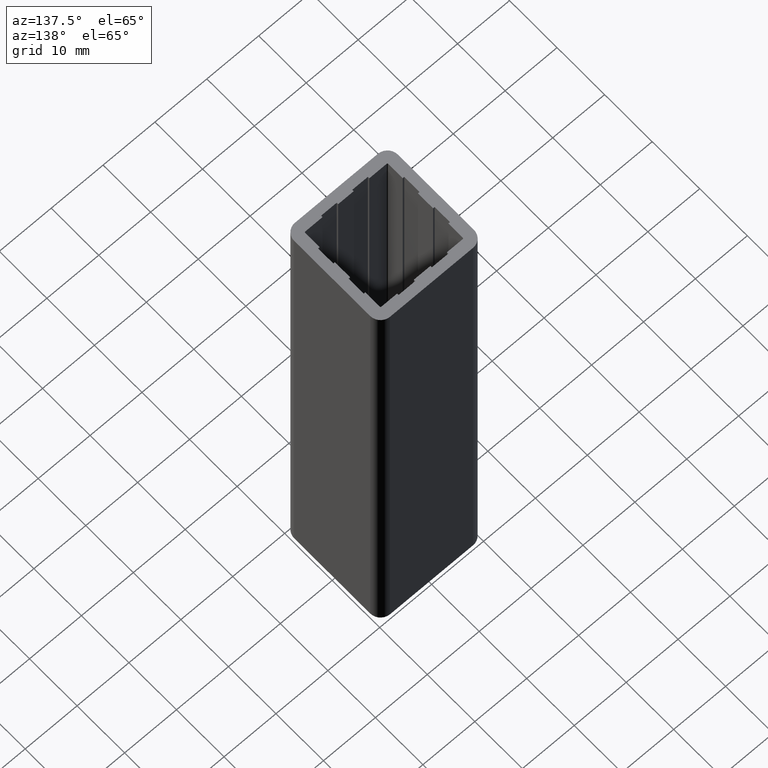
[diagram: clean part render]
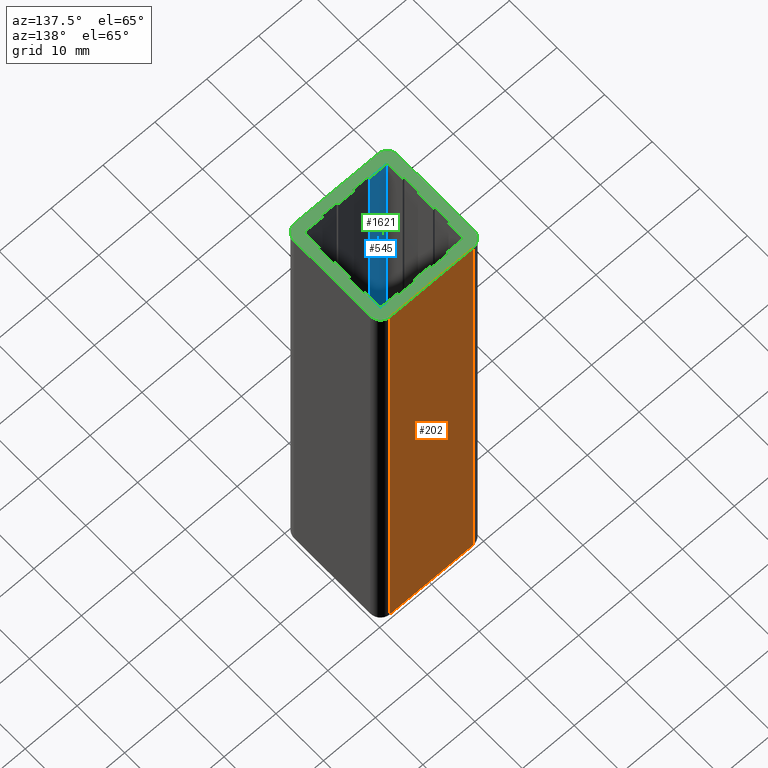
[diagram: same view with three faces highlighted in distinct colors, each labeled with its STEP entity id]
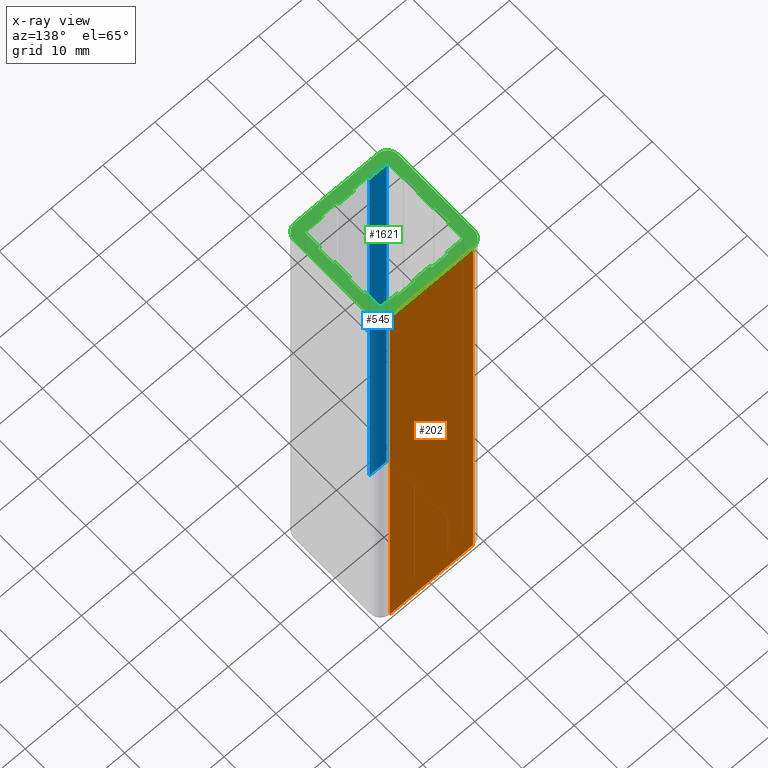
[diagram: x-ray of the same camera — body ghosted, the three highlighted faces saturated]
A machine part, auxiliary view with three faces highlighted in distinct colors.
The next image is the same camera in x-ray (body ghosted, the three faces saturated) — at least one of them is partly hidden behind the body in this view.
Their STEP definitions:

[orange] entity #202 — the highlighted planar face has unit normal (0, 1, 0).
#144=CARTESIAN_POINT('',(-2.0,10.0,0.0));
#145=VERTEX_POINT('',#144);
#153=CARTESIAN_POINT('',(-2.0,10.0,100.0));
#154=VERTEX_POINT('',#153);
#155=CARTESIAN_POINT('',(-2.0,10.0,0.0));
#156=DIRECTION('',(0.0,0.0,1.0));
#157=VECTOR('',#156,100.0);
#158=LINE('',#155,#157);
#159=EDGE_CURVE('',#145,#154,#158,.T.);
#172=CARTESIAN_POINT('',(-2.0,10.0,0.0));
#173=DIRECTION('',(0.0,1.0,0.0));
#174=DIRECTION('',(-1.0,0.0,0.0));
#175=AXIS2_PLACEMENT_3D('',#172,#173,#174);
#176=PLANE('',#175);
#177=CARTESIAN_POINT('',(-18.0,10.0,0.0));
#178=VERTEX_POINT('',#177);
#179=CARTESIAN_POINT('',(-1.999999999999989,10.0,0.0));
#180=DIRECTION('',(-1.0,0.0,0.0));
#181=VECTOR('',#180,16.000000000000011);
#182=LINE('',#179,#181);
#183=EDGE_CURVE('',#145,#178,#182,.T.);
#184=ORIENTED_EDGE('',*,*,#183,.T.);
#185=CARTESIAN_POINT('',(-18.0,10.0,100.0));
#186=VERTEX_POINT('',#185);
#187=CARTESIAN_POINT('',(-18.0,10.0,0.0));
#188=DIRECTION('',(0.0,0.0,1.0));
#189=VECTOR('',#188,100.0);
#190=LINE('',#187,#189);
#191=EDGE_CURVE('',#178,#186,#190,.T.);
#192=ORIENTED_EDGE('',*,*,#191,.T.);
#193=CARTESIAN_POINT('',(-1.999999999999989,10.0,100.0));
#194=DIRECTION('',(-1.0,0.0,0.0));
#195=VECTOR('',#194,16.000000000000011);
#196=LINE('',#193,#195);
#197=EDGE_CURVE('',#154,#186,#196,.T.);
#198=ORIENTED_EDGE('',*,*,#197,.F.);
#199=ORIENTED_EDGE('',*,*,#159,.F.);
#200=EDGE_LOOP('',(#184,#192,#198,#199));
#201=FACE_OUTER_BOUND('',#200,.T.);
#202=ADVANCED_FACE('',(#201),#176,.T.);

[blue] entity #545 — the highlighted planar face has unit normal (0, 1, 0).
#489=CARTESIAN_POINT('',(-14.500000000000000,-8.0,0.0));
#490=VERTEX_POINT('',#489);
#497=CARTESIAN_POINT('',(-14.500000000000000,-8.0,100.0));
#498=VERTEX_POINT('',#497);
#499=CARTESIAN_POINT('',(-14.500000000000000,-8.0,0.0));
#500=DIRECTION('',(0.0,0.0,1.0));
#501=VECTOR('',#500,100.0);
#502=LINE('',#499,#501);
#503=EDGE_CURVE('',#490,#498,#502,.T.);
#515=CARTESIAN_POINT('',(-14.500000000000000,-8.0,0.0));
#516=DIRECTION('',(0.0,1.0,0.0));
#517=DIRECTION('',(-1.0,0.0,0.0));
#518=AXIS2_PLACEMENT_3D('',#515,#516,#517);
#519=PLANE('',#518);
#520=CARTESIAN_POINT('',(-17.840000000000146,-8.000000000000227,0.0));
#521=VERTEX_POINT('',#520);
#522=CARTESIAN_POINT('',(-14.500000000000000,-8.0,0.0));
#523=DIRECTION('',(-1.0,0.0,0.0));
#524=VECTOR('',#523,3.340000000000146);
#525=LINE('',#522,#524);
#526=EDGE_CURVE('',#490,#521,#525,.T.);
#527=ORIENTED_EDGE('',*,*,#526,.T.);
#528=CARTESIAN_POINT('',(-17.840000000000146,-8.000000000000227,100.0));
#529=VERTEX_POINT('',#528);
#530=CARTESIAN_POINT('',(-17.840000000000146,-8.000000000000227,0.0));
#531=DIRECTION('',(0.0,0.0,1.0));
#532=VECTOR('',#531,100.0);
#533=LINE('',#530,#532);
#534=EDGE_CURVE('',#521,#529,#533,.T.);
#535=ORIENTED_EDGE('',*,*,#534,.T.);
#536=CARTESIAN_POINT('',(-14.500000000000000,-8.0,100.0));
#537=DIRECTION('',(-1.0,0.0,0.0));
#538=VECTOR('',#537,3.340000000000146);
#539=LINE('',#536,#538);
#540=EDGE_CURVE('',#498,#529,#539,.T.);
#541=ORIENTED_EDGE('',*,*,#540,.F.);
#542=ORIENTED_EDGE('',*,*,#503,.F.);
#543=EDGE_LOOP('',(#527,#535,#541,#542));
#544=FACE_OUTER_BOUND('',#543,.T.);
#545=ADVANCED_FACE('',(#544),#519,.T.);

[green] entity #1621 — the highlighted planar face has unit normal (0, 0, 1).
#18=CARTESIAN_POINT('',(-18.0,-10.0,100.0));
#19=VERTEX_POINT('',#18);
#26=CARTESIAN_POINT('',(-20.0,-8.0,100.0));
#27=VERTEX_POINT('',#26);
#28=CARTESIAN_POINT('',(-18.0,-8.0,100.0));
#29=DIRECTION('',(0.0,0.0,1.0));
#30=DIRECTION('',(1.0,0.0,0.0));
#31=AXIS2_PLACEMENT_3D('',#28,#29,#30);
#32=CIRCLE('',#31,2.0);
#33=EDGE_CURVE('',#27,#19,#32,.T.);
#57=CARTESIAN_POINT('',(-2.0,-10.0,100.0));
#58=VERTEX_POINT('',#57);
#65=CARTESIAN_POINT('',(-18.0,-10.0,100.0));
#66=DIRECTION('',(1.0,0.0,0.0));
#67=VECTOR('',#66,16.000000000000011);
#68=LINE('',#65,#67);
#69=EDGE_CURVE('',#19,#58,#68,.T.);
#89=CARTESIAN_POINT('',(0.0,-8.0,100.0));
#90=VERTEX_POINT('',#89);
#97=CARTESIAN_POINT('',(-2.0,-8.0,100.0));
#98=DIRECTION('',(0.0,0.0,1.0));
#99=DIRECTION('',(1.0,0.0,0.0));
#100=AXIS2_PLACEMENT_3D('',#97,#98,#99);
#101=CIRCLE('',#100,2.0);
#102=EDGE_CURVE('',#58,#90,#101,.T.);
#121=CARTESIAN_POINT('',(0.0,8.0,100.0));
#122=VERTEX_POINT('',#121);
#129=CARTESIAN_POINT('',(0.0,-8.0,100.0));
#130=DIRECTION('',(0.0,1.0,0.0));
#131=VECTOR('',#130,16.0);
#132=LINE('',#129,#131);
#133=EDGE_CURVE('',#90,#122,#132,.T.);
#153=CARTESIAN_POINT('',(-2.0,10.0,100.0));
#154=VERTEX_POINT('',#153);
#161=CARTESIAN_POINT('',(-2.0,8.0,100.0));
#162=DIRECTION('',(0.0,0.0,1.0));
#163=DIRECTION('',(1.0,0.0,0.0));
#164=AXIS2_PLACEMENT_3D('',#161,#162,#163);
#165=CIRCLE('',#164,2.0);
#166=EDGE_CURVE('',#122,#154,#165,.T.);
#185=CARTESIAN_POINT('',(-18.0,10.0,100.0));
#186=VERTEX_POINT('',#185);
#193=CARTESIAN_POINT('',(-1.999999999999989,10.0,100.0));
#194=DIRECTION('',(-1.0,0.0,0.0));
#195=VECTOR('',#194,16.000000000000011);
#196=LINE('',#193,#195);
#197=EDGE_CURVE('',#154,#186,#196,.T.);
#217=CARTESIAN_POINT('',(-20.0,8.0,100.0));
#218=VERTEX_POINT('',#217);
#225=CARTESIAN_POINT('',(-18.0,8.0,100.0));
#226=DIRECTION('',(0.0,0.0,1.0));
#227=DIRECTION('',(1.0,0.0,0.0));
#228=AXIS2_PLACEMENT_3D('',#225,#226,#227);
#229=CIRCLE('',#228,2.0);
#230=EDGE_CURVE('',#186,#218,#229,.T.);
#248=CARTESIAN_POINT('',(-20.0,8.0,100.0));
#249=DIRECTION('',(0.0,-1.0,0.0));
#250=VECTOR('',#249,16.0);
#251=LINE('',#248,#250);
#252=EDGE_CURVE('',#218,#27,#251,.T.);
#273=CARTESIAN_POINT('',(-5.500000000000000,-8.0,100.0));
#274=VERTEX_POINT('',#273);
#281=CARTESIAN_POINT('',(-2.160000000000196,-8.0,100.0));
#282=VERTEX_POINT('',#281);
#283=CARTESIAN_POINT('',(-2.160000000000218,-8.0,100.0));
#284=DIRECTION('',(-1.0,0.0,0.0));
#285=VECTOR('',#284,3.339999999999782);
#286=LINE('',#283,#285);
#287=EDGE_CURVE('',#282,#274,#286,.T.);
#311=CARTESIAN_POINT('',(-5.500000000000000,-8.299999999999955,100.0));
#312=VERTEX_POINT('',#311);
#319=CARTESIAN_POINT('',(-5.500000000000000,-7.999999999999955,100.0));
#320=DIRECTION('',(0.0,-1.0,0.0));
#321=VECTOR('',#320,0.300000000000000);
#322=LINE('',#319,#321);
#323=EDGE_CURVE('',#274,#312,#322,.T.);
#342=CARTESIAN_POINT('',(-8.500000000000000,-8.299999999999955,100.0));
#343=VERTEX_POINT('',#342);
#350=CARTESIAN_POINT('',(-5.500000000000000,-8.299999999999955,100.0));
#351=DIRECTION('',(-1.0,0.0,0.0));
#352=VECTOR('',#351,3.0);
#353=LINE('',#350,#352);
#354=EDGE_CURVE('',#312,#343,#353,.T.);
#373=CARTESIAN_POINT('',(-8.500000000000000,-8.0,100.0));
#374=VERTEX_POINT('',#373);
#381=CARTESIAN_POINT('',(-8.500000000000000,-8.300000000000001,100.0));
#382=DIRECTION('',(0.0,1.0,0.0));
#383=VECTOR('',#382,0.300000000000001);
#384=LINE('',#381,#383);
#385=EDGE_CURVE('',#343,#374,#384,.T.);
#404=CARTESIAN_POINT('',(-11.500000000000000,-8.0,100.0));
#405=VERTEX_POINT('',#404);
#412=CARTESIAN_POINT('',(-8.500000000000011,-8.0,100.0));
#413=DIRECTION('',(-1.0,0.0,0.0));
#414=VECTOR('',#413,2.999999999999989);
#415=LINE('',#412,#414);
#416=EDGE_CURVE('',#374,#405,#415,.T.);
#435=CARTESIAN_POINT('',(-11.500000000000000,-8.299999999999955,100.0));
#436=VERTEX_POINT('',#435);
#443=CARTESIAN_POINT('',(-11.500000000000000,-7.999999999999955,100.0));
#444=DIRECTION('',(0.0,-1.0,0.0));
#445=VECTOR('',#444,0.300000000000000);
#446=LINE('',#443,#445);
#447=EDGE_CURVE('',#405,#436,#446,.T.);
#466=CARTESIAN_POINT('',(-14.500000000000000,-8.299999999999955,100.0));
#467=VERTEX_POINT('',#466);
#474=CARTESIAN_POINT('',(-11.500000000000000,-8.299999999999955,100.0));
#475=DIRECTION('',(-1.0,0.0,0.0));
#476=VECTOR('',#475,3.0);
#477=LINE('',#474,#476);
#478=EDGE_CURVE('',#436,#467,#477,.T.);
#497=CARTESIAN_POINT('',(-14.500000000000000,-8.0,100.0));
#498=VERTEX_POINT('',#497);
#505=CARTESIAN_POINT('',(-14.500000000000000,-8.300000000000001,100.0));
#506=DIRECTION('',(0.0,1.0,0.0));
#507=VECTOR('',#506,0.300000000000001);
#508=LINE('',#505,#507);
#509=EDGE_CURVE('',#467,#498,#508,.T.);
#528=CARTESIAN_POINT('',(-17.840000000000146,-8.000000000000227,100.0));
#529=VERTEX_POINT('',#528);
#536=CARTESIAN_POINT('',(-14.500000000000000,-8.0,100.0));
#537=DIRECTION('',(-1.0,0.0,0.0));
#538=VECTOR('',#537,3.340000000000146);
#539=LINE('',#536,#538);
#540=EDGE_CURVE('',#498,#529,#539,.T.);
#560=CARTESIAN_POINT('',(-18.000000000000341,-7.840000000000146,100.0));
#561=VERTEX_POINT('',#560);
#568=CARTESIAN_POINT('',(-17.840000000000146,-7.840000000000146,100.0));
#569=DIRECTION('',(0.0,0.0,-1.0));
#570=DIRECTION('',(1.0,0.0,0.0));
#571=AXIS2_PLACEMENT_3D('',#568,#569,#570);
#572=CIRCLE('',#571,0.160000000000000);
#573=EDGE_CURVE('',#529,#561,#572,.T.);
#592=CARTESIAN_POINT('',(-18.000000000000341,-4.799999999999955,100.0));
#593=VERTEX_POINT('',#592);
#600=CARTESIAN_POINT('',(-18.000000000000341,-7.840000000000055,100.0));
#601=DIRECTION('',(0.0,1.0,0.0));
#602=VECTOR('',#601,3.040000000000100);
#603=LINE('',#600,#602);
#604=EDGE_CURVE('',#561,#593,#603,.T.);
#623=CARTESIAN_POINT('',(-18.300000000000409,-4.799999999999955,100.0));
#624=VERTEX_POINT('',#623);
#631=CARTESIAN_POINT('',(-18.000000000000398,-4.799999999999955,100.0));
#632=DIRECTION('',(-1.0,0.0,0.0));
#633=VECTOR('',#632,0.300000000000011);
#634=LINE('',#631,#633);
#635=EDGE_CURVE('',#593,#624,#634,.T.);
#654=CARTESIAN_POINT('',(-18.300000000000296,-1.599999999999909,100.0));
#655=VERTEX_POINT('',#654);
#662=CARTESIAN_POINT('',(-18.300000000000409,-4.799999999999909,100.0));
#663=DIRECTION('',(0.0,1.0,0.0));
#664=VECTOR('',#663,3.200000000000000);
#665=LINE('',#662,#664);
#666=EDGE_CURVE('',#624,#655,#665,.T.);
#685=CARTESIAN_POINT('',(-18.000000000000341,-1.599999999999909,100.0));
#686=VERTEX_POINT('',#685);
#693=CARTESIAN_POINT('',(-18.300000000000352,-1.599999999999909,100.0));
#694=DIRECTION('',(1.0,0.0,0.0));
#695=VECTOR('',#694,0.300000000000011);
#696=LINE('',#693,#695);
#697=EDGE_CURVE('',#655,#686,#696,.T.);
#716=CARTESIAN_POINT('',(-18.000000000000341,1.599999999999909,100.0));
#717=VERTEX_POINT('',#716);
#724=CARTESIAN_POINT('',(-18.000000000000341,-1.600000000000000,100.0));
#725=DIRECTION('',(0.0,1.0,0.0));
#726=VECTOR('',#725,3.199999999999909);
#727=LINE('',#724,#726);
#728=EDGE_CURVE('',#686,#717,#727,.T.);
#747=CARTESIAN_POINT('',(-18.300000000000409,1.599999999999909,100.0));
#748=VERTEX_POINT('',#747);
#755=CARTESIAN_POINT('',(-18.000000000000398,1.599999999999909,100.0));
#756=DIRECTION('',(-1.0,0.0,0.0));
#757=VECTOR('',#756,0.300000000000011);
#758=LINE('',#755,#757);
#759=EDGE_CURVE('',#717,#748,#758,.T.);
#778=CARTESIAN_POINT('',(-18.300000000000296,4.799999999999955,100.0));
#779=VERTEX_POINT('',#778);
#786=CARTESIAN_POINT('',(-18.300000000000409,1.599999999999954,100.0));
#787=DIRECTION('',(0.0,1.0,0.0));
#788=VECTOR('',#787,3.200000000000000);
#789=LINE('',#786,#788);
#790=EDGE_CURVE('',#748,#779,#789,.T.);
#809=CARTESIAN_POINT('',(-18.000000000000341,4.799999999999955,100.0));
#810=VERTEX_POINT('',#809);
#817=CARTESIAN_POINT('',(-18.300000000000352,4.799999999999955,100.0));
#818=DIRECTION('',(1.0,0.0,0.0));
#819=VECTOR('',#818,0.300000000000011);
#820=LINE('',#817,#819);
#821=EDGE_CURVE('',#779,#810,#820,.T.);
#840=CARTESIAN_POINT('',(-18.000000000000455,7.840000000000146,100.0));
#841=VERTEX_POINT('',#840);
#848=CARTESIAN_POINT('',(-18.000000000000341,4.800000000000045,100.0));
#849=DIRECTION('',(0.0,1.0,0.0));
#850=VECTOR('',#849,3.040000000000100);
#851=LINE('',#848,#850);
#852=EDGE_CURVE('',#810,#841,#851,.T.);
#872=CARTESIAN_POINT('',(-17.840000000000600,8.0,100.0));
#873=VERTEX_POINT('',#872);
#880=CARTESIAN_POINT('',(-17.840000000000487,7.840000000000146,100.0));
#881=DIRECTION('',(0.0,0.0,-1.0));
#882=DIRECTION('',(1.0,0.0,0.0));
#883=AXIS2_PLACEMENT_3D('',#880,#881,#882);
#884=CIRCLE('',#883,0.160000000000000);
#885=EDGE_CURVE('',#841,#873,#884,.T.);
#904=CARTESIAN_POINT('',(-14.800000000000068,8.0,100.0));
#905=VERTEX_POINT('',#904);
#912=CARTESIAN_POINT('',(-17.840000000000565,8.0,100.0));
#913=DIRECTION('',(1.0,0.0,0.0));
#914=VECTOR('',#913,3.040000000000497);
#915=LINE('',#912,#914);
#916=EDGE_CURVE('',#873,#905,#915,.T.);
#935=CARTESIAN_POINT('',(-14.800000000000068,8.299999999999955,100.0));
#936=VERTEX_POINT('',#935);
#943=CARTESIAN_POINT('',(-14.800000000000068,7.999999999999955,100.0));
#944=DIRECTION('',(0.0,1.0,0.0));
#945=VECTOR('',#944,0.300000000000000);
#946=LINE('',#943,#945);
#947=EDGE_CURVE('',#905,#936,#946,.T.);
#966=CARTESIAN_POINT('',(-11.600000000000250,8.299999999999955,100.0));
#967=VERTEX_POINT('',#966);
#974=CARTESIAN_POINT('',(-14.800000000000068,8.299999999999955,100.0));
#975=DIRECTION('',(1.0,0.0,0.0));
#976=VECTOR('',#975,3.199999999999818);
#977=LINE('',#974,#976);
#978=EDGE_CURVE('',#936,#967,#977,.T.);
#997=CARTESIAN_POINT('',(-11.600000000000136,8.0,100.0));
#998=VERTEX_POINT('',#997);
#1005=CARTESIAN_POINT('',(-11.600000000000250,8.300000000000001,100.0));
#1006=DIRECTION('',(0.0,-1.0,0.0));
#1007=VECTOR('',#1006,0.300000000000001);
#1008=LINE('',#1005,#1007);
#1009=EDGE_CURVE('',#967,#998,#1008,.T.);
#1028=CARTESIAN_POINT('',(-8.399999999999977,8.0,100.0));
#1029=VERTEX_POINT('',#1028);
#1036=CARTESIAN_POINT('',(-11.600000000000170,8.0,100.0));
#1037=DIRECTION('',(1.0,0.0,0.0));
#1038=VECTOR('',#1037,3.200000000000193);
#1039=LINE('',#1036,#1038);
#1040=EDGE_CURVE('',#998,#1029,#1039,.T.);
#1059=CARTESIAN_POINT('',(-8.399999999999977,8.299999999999955,100.0));
#1060=VERTEX_POINT('',#1059);
#1067=CARTESIAN_POINT('',(-8.399999999999977,7.999999999999955,100.0));
#1068=DIRECTION('',(0.0,1.0,0.0));
#1069=VECTOR('',#1068,0.300000000000000);
#1070=LINE('',#1067,#1069);
#1071=EDGE_CURVE('',#1029,#1060,#1070,.T.);
#1090=CARTESIAN_POINT('',(-5.200000000000046,8.299999999999955,100.0));
#1091=VERTEX_POINT('',#1090);
#1098=CARTESIAN_POINT('',(-8.400000000000034,8.299999999999955,100.0));
#1099=DIRECTION('',(1.0,0.0,0.0));
#1100=VECTOR('',#1099,3.199999999999989);
#1101=LINE('',#1098,#1100);
#1102=EDGE_CURVE('',#1060,#1091,#1101,.T.);
#1121=CARTESIAN_POINT('',(-5.199999999999932,8.0,100.0));
#1122=VERTEX_POINT('',#1121);
#1129=CARTESIAN_POINT('',(-5.200000000000046,8.300000000000001,100.0));
#1130=DIRECTION('',(0.0,-1.0,0.0));
#1131=VECTOR('',#1130,0.300000000000001);
#1132=LINE('',#1129,#1131);
#1133=EDGE_CURVE('',#1091,#1122,#1132,.T.);
#1152=CARTESIAN_POINT('',(-2.160000000000196,8.000000000000227,100.0));
#1153=VERTEX_POINT('',#1152);
#1160=CARTESIAN_POINT('',(-5.199999999999978,8.0,100.0));
#1161=DIRECTION('',(1.0,0.0,0.0));
#1162=VECTOR('',#1161,3.039999999999782);
#1163=LINE('',#1160,#1162);
#1164=EDGE_CURVE('',#1122,#1153,#1163,.T.);
#1184=CARTESIAN_POINT('',(-2.000000000000341,7.840000000000146,100.0));
#1185=VERTEX_POINT('',#1184);
#1192=CARTESIAN_POINT('',(-2.160000000000196,7.840000000000146,100.0));
#1193=DIRECTION('',(0.0,0.0,-1.0));
#1194=DIRECTION('',(1.0,0.0,0.0));
#1195=AXIS2_PLACEMENT_3D('',#1192,#1193,#1194);
#1196=CIRCLE('',#1195,0.160000000000000);
#1197=EDGE_CURVE('',#1153,#1185,#1196,.T.);
#1216=CARTESIAN_POINT('',(-2.000000000000455,4.799999999999955,100.0));
#1217=VERTEX_POINT('',#1216);
#1224=CARTESIAN_POINT('',(-2.000000000000341,7.840000000000055,100.0));
#1225=DIRECTION('',(0.0,-1.0,0.0));
#1226=VECTOR('',#1225,3.040000000000100);
#1227=LINE('',#1224,#1226);
#1228=EDGE_CURVE('',#1185,#1217,#1227,.T.);
#1247=CARTESIAN_POINT('',(-1.700000000000046,4.799999999999955,100.0));
#1248=VERTEX_POINT('',#1247);
#1255=CARTESIAN_POINT('',(-2.000000000000421,4.799999999999955,100.0));
#1256=DIRECTION('',(1.0,0.0,0.0));
#1257=VECTOR('',#1256,0.300000000000375);
#1258=LINE('',#1255,#1257);
#1259=EDGE_CURVE('',#1217,#1248,#1258,.T.);
#1278=CARTESIAN_POINT('',(-1.699999999999932,1.599999999999909,100.0));
#1279=VERTEX_POINT('',#1278);
#1286=CARTESIAN_POINT('',(-1.700000000000046,4.799999999999909,100.0));
#1287=DIRECTION('',(0.0,-1.0,0.0));
#1288=VECTOR('',#1287,3.200000000000000);
#1289=LINE('',#1286,#1288);
#1290=EDGE_CURVE('',#1248,#1279,#1289,.T.);
#1309=CARTESIAN_POINT('',(-2.000000000000341,1.599999999999909,100.0));
#1310=VERTEX_POINT('',#1309);
#1317=CARTESIAN_POINT('',(-1.699999999999966,1.599999999999909,100.0));
#1318=DIRECTION('',(-1.0,0.0,0.0));
#1319=VECTOR('',#1318,0.300000000000375);
#1320=LINE('',#1317,#1319);
#1321=EDGE_CURVE('',#1279,#1310,#1320,.T.);
#1340=CARTESIAN_POINT('',(-2.000000000000455,-1.599999999999909,100.0));
#1341=VERTEX_POINT('',#1340);
#1348=CARTESIAN_POINT('',(-2.000000000000341,1.600000000000000,100.0));
#1349=DIRECTION('',(0.0,-1.0,0.0));
#1350=VECTOR('',#1349,3.199999999999909);
#1351=LINE('',#1348,#1350);
#1352=EDGE_CURVE('',#1310,#1341,#1351,.T.);
#1371=CARTESIAN_POINT('',(-1.700000000000046,-1.599999999999909,100.0));
#1372=VERTEX_POINT('',#1371);
#1379=CARTESIAN_POINT('',(-2.000000000000421,-1.599999999999909,100.0));
#1380=DIRECTION('',(1.0,0.0,0.0));
#1381=VECTOR('',#1380,0.300000000000375);
#1382=LINE('',#1379,#1381);
#1383=EDGE_CURVE('',#1341,#1372,#1382,.T.);
#1402=CARTESIAN_POINT('',(-1.699999999999932,-4.799999999999955,100.0));
#1403=VERTEX_POINT('',#1402);
#1410=CARTESIAN_POINT('',(-1.700000000000046,-1.599999999999954,100.0));
#1411=DIRECTION('',(0.0,-1.0,0.0));
#1412=VECTOR('',#1411,3.200000000000000);
#1413=LINE('',#1410,#1412);
#1414=EDGE_CURVE('',#1372,#1403,#1413,.T.);
#1433=CARTESIAN_POINT('',(-2.000000000000341,-4.799999999999955,100.0));
#1434=VERTEX_POINT('',#1433);
#1441=CARTESIAN_POINT('',(-1.699999999999966,-4.799999999999955,100.0));
#1442=DIRECTION('',(-1.0,0.0,0.0));
#1443=VECTOR('',#1442,0.300000000000375);
#1444=LINE('',#1441,#1443);
#1445=EDGE_CURVE('',#1403,#1434,#1444,.T.);
#1464=CARTESIAN_POINT('',(-2.000000000000227,-7.840000000000146,100.0));
#1465=VERTEX_POINT('',#1464);
#1472=CARTESIAN_POINT('',(-2.000000000000341,-4.800000000000045,100.0));
#1473=DIRECTION('',(0.0,-1.0,0.0));
#1474=VECTOR('',#1473,3.040000000000100);
#1475=LINE('',#1472,#1474);
#1476=EDGE_CURVE('',#1434,#1465,#1475,.T.);
#1495=CARTESIAN_POINT('',(-2.160000000000196,-7.840000000000146,100.0));
#1496=DIRECTION('',(0.0,0.0,-1.0));
#1497=DIRECTION('',(1.0,0.0,0.0));
#1498=AXIS2_PLACEMENT_3D('',#1495,#1496,#1497);
#1499=CIRCLE('',#1498,0.160000000000000);
#1500=EDGE_CURVE('',#1465,#282,#1499,.T.);
#1564=CARTESIAN_POINT('',(-22.000012002898075,-12.000012002849189,100.0));
#1565=DIRECTION('',(0.0,0.0,1.0));
#1566=DIRECTION('',(1.0,0.0,0.0));
#1567=AXIS2_PLACEMENT_3D('',#1564,#1565,#1566);
#1568=PLANE('',#1567);
#1569=ORIENTED_EDGE('',*,*,#33,.T.);
#1570=ORIENTED_EDGE('',*,*,#69,.T.);
#1571=ORIENTED_EDGE('',*,*,#102,.T.);
#1572=ORIENTED_EDGE('',*,*,#133,.T.);
#1573=ORIENTED_EDGE('',*,*,#166,.T.);
#1574=ORIENTED_EDGE('',*,*,#197,.T.);
#1575=ORIENTED_EDGE('',*,*,#230,.T.);
#1576=ORIENTED_EDGE('',*,*,#252,.T.);
#1577=EDGE_LOOP('',(#1569,#1570,#1571,#1572,#1573,#1574,#1575,#1576));
#1578=FACE_OUTER_BOUND('',#1577,.T.);
#1579=ORIENTED_EDGE('',*,*,#287,.T.);
#1580=ORIENTED_EDGE('',*,*,#323,.T.);
#1581=ORIENTED_EDGE('',*,*,#354,.T.);
#1582=ORIENTED_EDGE('',*,*,#385,.T.);
#1583=ORIENTED_EDGE('',*,*,#416,.T.);
#1584=ORIENTED_EDGE('',*,*,#447,.T.);
#1585=ORIENTED_EDGE('',*,*,#478,.T.);
#1586=ORIENTED_EDGE('',*,*,#509,.T.);
#1587=ORIENTED_EDGE('',*,*,#540,.T.);
#1588=ORIENTED_EDGE('',*,*,#573,.T.);
#1589=ORIENTED_EDGE('',*,*,#604,.T.);
#1590=ORIENTED_EDGE('',*,*,#635,.T.);
#1591=ORIENTED_EDGE('',*,*,#666,.T.);
#1592=ORIENTED_EDGE('',*,*,#697,.T.);
#1593=ORIENTED_EDGE('',*,*,#728,.T.);
#1594=ORIENTED_EDGE('',*,*,#759,.T.);
#1595=ORIENTED_EDGE('',*,*,#790,.T.);
#1596=ORIENTED_EDGE('',*,*,#821,.T.);
#1597=ORIENTED_EDGE('',*,*,#852,.T.);
#1598=ORIENTED_EDGE('',*,*,#885,.T.);
#1599=ORIENTED_EDGE('',*,*,#916,.T.);
#1600=ORIENTED_EDGE('',*,*,#947,.T.);
#1601=ORIENTED_EDGE('',*,*,#978,.T.);
#1602=ORIENTED_EDGE('',*,*,#1009,.T.);
#1603=ORIENTED_EDGE('',*,*,#1040,.T.);
#1604=ORIENTED_EDGE('',*,*,#1071,.T.);
#1605=ORIENTED_EDGE('',*,*,#1102,.T.);
#1606=ORIENTED_EDGE('',*,*,#1133,.T.);
#1607=ORIENTED_EDGE('',*,*,#1164,.T.);
#1608=ORIENTED_EDGE('',*,*,#1197,.T.);
#1609=ORIENTED_EDGE('',*,*,#1228,.T.);
#1610=ORIENTED_EDGE('',*,*,#1259,.T.);
#1611=ORIENTED_EDGE('',*,*,#1290,.T.);
#1612=ORIENTED_EDGE('',*,*,#1321,.T.);
#1613=ORIENTED_EDGE('',*,*,#1352,.T.);
#1614=ORIENTED_EDGE('',*,*,#1383,.T.);
#1615=ORIENTED_EDGE('',*,*,#1414,.T.);
#1616=ORIENTED_EDGE('',*,*,#1445,.T.);
#1617=ORIENTED_EDGE('',*,*,#1476,.T.);
#1618=ORIENTED_EDGE('',*,*,#1500,.T.);
#1619=EDGE_LOOP('',(#1579,#1580,#1581,#1582,#1583,#1584,#1585,#1586,#1587,#1588,#1589,#1590,#1591,#1592,#1593,#1594,#1595,#1596,#1597,#1598,#1599,#1600,#1601,#1602,#1603,#1604,#1605,#1606,#1607,#1608,#1609,#1610,#1611,#1612,#1613,#1614,#1615,#1616,#1617,#1618));
#1620=FACE_BOUND('',#1619,.T.);
#1621=ADVANCED_FACE('',(#1578,#1620),#1568,.T.);